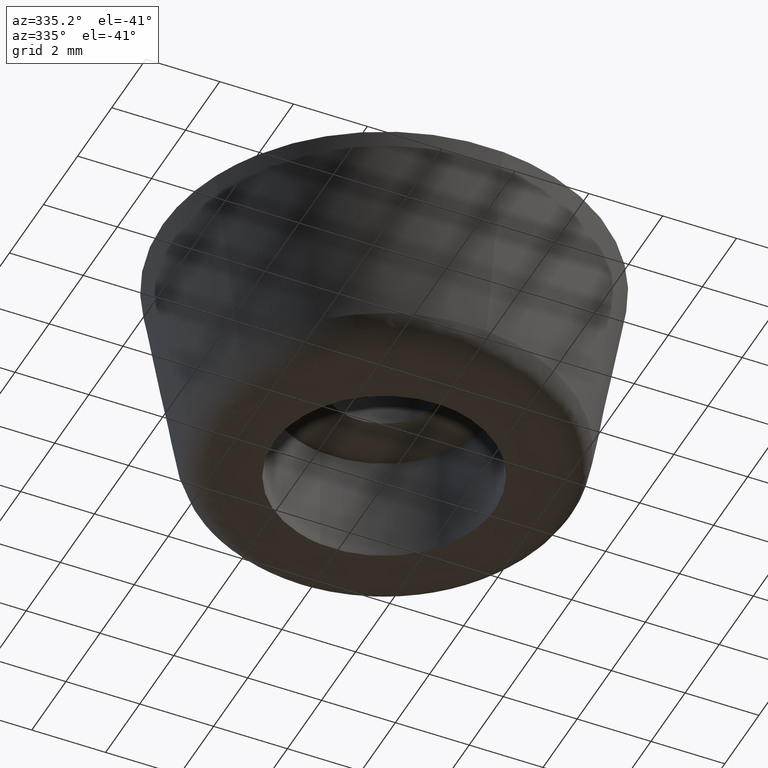
[diagram: clean part render]
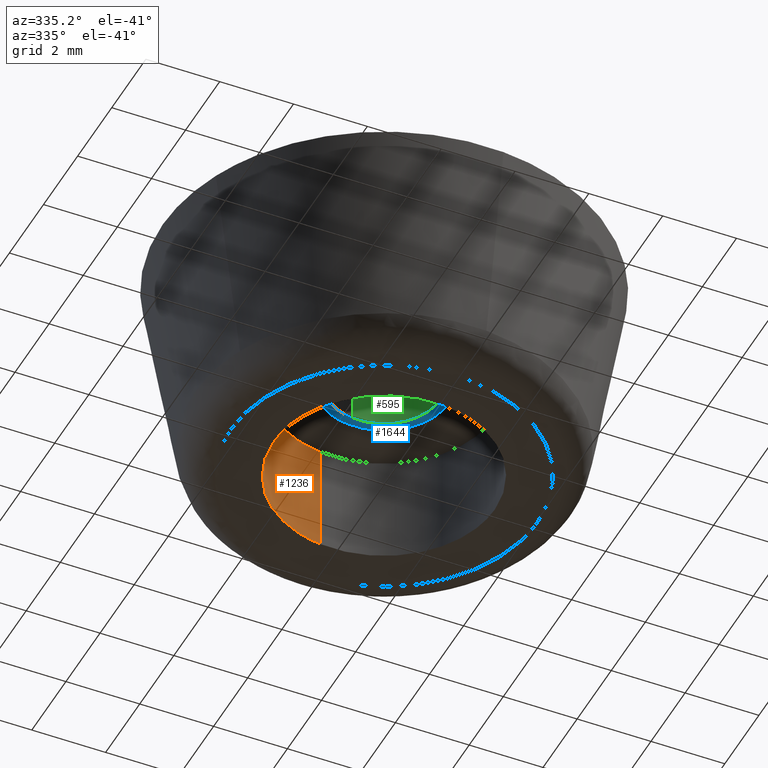
[diagram: same view with three faces highlighted in distinct colors, each labeled with its STEP entity id]
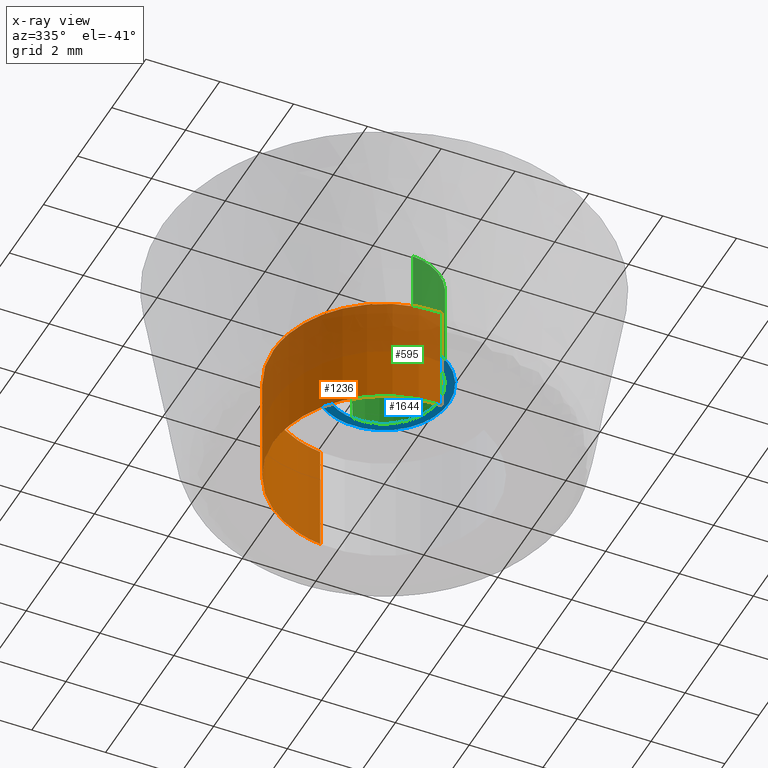
[diagram: x-ray of the same camera — body ghosted, the three highlighted faces saturated]
A machine part, auxiliary view with three faces highlighted in distinct colors.
The next image is the same camera in x-ray (body ghosted, the three faces saturated) — at least one of them is partly hidden behind the body in this view.
Their STEP definitions:

[orange] entity #1236 — the highlighted face is a freeform B-spline surface patch.
#1073=CARTESIAN_POINT('',(-0.354101457130916,2.979028727296228,2.999999999999995));
#1074=VERTEX_POINT('',#1073);
#1092=CARTESIAN_POINT('',(-0.354101472135801,2.979028725512682,-8.518285E-017));
#1093=VERTEX_POINT('',#1092);
#1094=CARTESIAN_POINT('',(-0.354101457130916,2.979028727296228,2.999999999999995));
#1095=CARTESIAN_POINT('',(-0.354101472135801,2.979028725512682,-8.518285E-017));
#1096=QUASI_UNIFORM_CURVE('',1,(#1094,#1095),.UNSPECIFIED.,.F.,.U.);
#1097=EDGE_CURVE('',#1074,#1093,#1096,.T.);
#1116=CARTESIAN_POINT('',(0.183143654877451,-2.994404515371004,-8.326673E-017));
#1117=VERTEX_POINT('',#1116);
#1131=CARTESIAN_POINT('',(0.183143630903085,-2.994404516837307,3.000000000000010));
#1132=VERTEX_POINT('',#1131);
#1133=CARTESIAN_POINT('',(0.183143630903085,-2.994404516837307,3.000000000000010));
#1134=CARTESIAN_POINT('',(0.183143654877451,-2.994404515371004,-8.326673E-017));
#1135=QUASI_UNIFORM_CURVE('',1,(#1133,#1134),.UNSPECIFIED.,.F.,.U.);
#1136=EDGE_CURVE('',#1132,#1117,#1135,.T.);
#1154=CARTESIAN_POINT('',(0.183145618604571,-2.994404395265600,3.075000000000001));
#1155=CARTESIAN_POINT('',(-2.811258776661029,-3.177550013870171,3.075000000000000));
#1156=CARTESIAN_POINT('',(-2.994404395265600,-0.183145618604571,3.075000000000001));
#1157=CARTESIAN_POINT('',(-3.167358590197582,2.644630472518504,3.075000000000001));
#1158=CARTESIAN_POINT('',(-0.354102703970275,2.979028579091000,3.075000000000002));
#1159=CARTESIAN_POINT('',(0.183145618604571,-2.994404395265600,-0.076875000000000));
#1160=CARTESIAN_POINT('',(-2.811258776661029,-3.177550013870171,-0.076875000000000));
#1161=CARTESIAN_POINT('',(-2.994404395265600,-0.183145618604571,-0.076875000000000));
#1162=CARTESIAN_POINT('',(-3.167358590197582,2.644630472518504,-0.076875000000000));
#1163=CARTESIAN_POINT('',(-0.354102703970275,2.979028579091000,-0.076875000000000));
#1171=(BOUNDED_SURFACE()B_SPLINE_SURFACE(2,1,((#1154,#1159),(#1155,#1160),(#1156,#1161),(#1157,#1162),(#1158,#1163)),.UNSPECIFIED.,.F.,.F.,.U.)B_SPLINE_SURFACE_WITH_KNOTS((3,2,3),(2,2),(0.0,4.970562748477139,9.742302987015194),(0.0,3.151875000000002),.UNSPECIFIED.)GEOMETRIC_REPRESENTATION_ITEM()RATIONAL_B_SPLINE_SURFACE(((1.0,1.0),(0.707106781186548,0.707106781186548),(1.0,1.0),(0.718822509939086,0.718822509939086),(0.977505800795127,0.977505800795127)))REPRESENTATION_ITEM('')SURFACE());
#1172=CARTESIAN_POINT('',(-3.0,0.0,3.0));
#1173=VERTEX_POINT('',#1172);
#1174=CARTESIAN_POINT('',(-3.0,0.0,3.0));
#1175=CARTESIAN_POINT('',(-3.000000000000001,2.664524700911740,3.000000000000001));
#1176=CARTESIAN_POINT('',(-0.354101457130916,2.979028727296228,2.999999999999995));
#1184=(BOUNDED_CURVE()B_SPLINE_CURVE(2,(#1174,#1175,#1176),.UNSPECIFIED.,.F.,.U.)B_SPLINE_CURVE_WITH_KNOTS((3,3),(0.0,0.229562544250081),.UNSPECIFIED.)CURVE()GEOMETRIC_REPRESENTATION_ITEM()RATIONAL_B_SPLINE_CURVE((1.0,0.731050749982353,0.956026892830324))REPRESENTATION_ITEM(''));
#1185=EDGE_CURVE('',#1173,#1074,#1184,.T.);
#1186=ORIENTED_EDGE('',*,*,#1185,.F.);
#1187=CARTESIAN_POINT('',(0.183143630903085,-2.994404516837307,3.000000000000010));
#1188=CARTESIAN_POINT('',(0.091657293258414,-3.000000000000000,3.000000000000000));
#1189=CARTESIAN_POINT('',(0.0,-3.0,3.0));
#1190=CARTESIAN_POINT('',(-3.0,-3.0,3.0));
#1191=CARTESIAN_POINT('',(-3.0,0.0,3.0));
#1199=(BOUNDED_CURVE()B_SPLINE_CURVE(2,(#1187,#1188,#1189,#1190,#1191),.UNSPECIFIED.,.F.,.U.)B_SPLINE_CURVE_WITH_KNOTS((3,2,3),(0.739333076779450,0.750000000000000,1.0),.UNSPECIFIED.)CURVE()GEOMETRIC_REPRESENTATION_ITEM()RATIONAL_B_SPLINE_CURVE((0.976072287148952,0.987502922092389,1.0,0.707106781186548,1.0))REPRESENTATION_ITEM(''));
#1200=EDGE_CURVE('',#1132,#1173,#1199,.T.);
#1201=ORIENTED_EDGE('',*,*,#1200,.F.);
#1202=ORIENTED_EDGE('',*,*,#1136,.T.);
#1203=CARTESIAN_POINT('',(-3.0,0.0,0.0));
#1204=VERTEX_POINT('',#1203);
#1205=CARTESIAN_POINT('',(0.183143654877451,-2.994404515371004,-8.326673E-017));
#1206=CARTESIAN_POINT('',(0.091657305279207,-3.000000000000001,0.0));
#1207=CARTESIAN_POINT('',(0.0,-3.0,0.0));
#1208=CARTESIAN_POINT('',(-3.0,-3.0,0.0));
#1209=CARTESIAN_POINT('',(-3.0,0.0,0.0));
#1217=(BOUNDED_CURVE()B_SPLINE_CURVE(2,(#1205,#1206,#1207,#1208,#1209),.UNSPECIFIED.,.F.,.U.)B_SPLINE_CURVE_WITH_KNOTS((3,2,3),(0.739333075397973,0.750000000000000,1.0),.UNSPECIFIED.)CURVE()GEOMETRIC_REPRESENTATION_ITEM()RATIONAL_B_SPLINE_CURVE((0.976072284188181,0.987502920473888,1.0,0.707106781186548,1.0))REPRESENTATION_ITEM(''));
#1218=EDGE_CURVE('',#1117,#1204,#1217,.T.);
#1219=ORIENTED_EDGE('',*,*,#1218,.T.);
#1220=CARTESIAN_POINT('',(-3.0,0.0,0.0));
#1221=CARTESIAN_POINT('',(-3.000000000000000,2.664524687396485,0.0));
#1222=CARTESIAN_POINT('',(-0.354101472135801,2.979028725512683,-8.518285E-017));
#1230=(BOUNDED_CURVE()B_SPLINE_CURVE(2,(#1220,#1221,#1222),.UNSPECIFIED.,.F.,.U.)B_SPLINE_CURVE_WITH_KNOTS((3,3),(0.0,0.229562543398839),.UNSPECIFIED.)CURVE()GEOMETRIC_REPRESENTATION_ITEM()RATIONAL_B_SPLINE_CURVE((1.0,0.731050750979645,0.956026891161853))REPRESENTATION_ITEM(''));
#1231=EDGE_CURVE('',#1204,#1093,#1230,.T.);
#1232=ORIENTED_EDGE('',*,*,#1231,.T.);
#1233=ORIENTED_EDGE('',*,*,#1097,.F.);
#1234=EDGE_LOOP('',(#1186,#1201,#1202,#1219,#1232,#1233));
#1235=FACE_OUTER_BOUND('',#1234,.T.);
#1236=ADVANCED_FACE('',(#1235),#1171,.F.);

[blue] entity #1644 — the highlighted face is a freeform B-spline surface patch.
#534=CARTESIAN_POINT('',(-0.177051351995047,1.489514289544322,3.0));
#535=VERTEX_POINT('',#534);
#541=CARTESIAN_POINT('',(1.500000000000000,0.0,3.0));
#542=VERTEX_POINT('',#541);
#543=CARTESIAN_POINT('',(-0.177051351995047,1.489514289544321,3.000000000000001));
#544=CARTESIAN_POINT('',(-0.088836179487880,1.500000000000000,3.000000000000000));
#545=CARTESIAN_POINT('',(0.0,1.500000000000000,3.0));
#546=CARTESIAN_POINT('',(1.500000000000000,1.500000000000000,3.0));
#547=CARTESIAN_POINT('',(1.500000000000000,0.0,3.0));
#555=(BOUNDED_CURVE()B_SPLINE_CURVE(2,(#543,#544,#545,#546,#547),.UNSPECIFIED.,.F.,.U.)B_SPLINE_CURVE_WITH_KNOTS((3,2,3),(0.229562473513396,0.250000000000000,0.500000000000000),.UNSPECIFIED.)CURVE()GEOMETRIC_REPRESENTATION_ITEM()RATIONAL_B_SPLINE_CURVE((0.956026754183478,0.976055948331013,1.0,0.707106781186548,1.0))REPRESENTATION_ITEM(''));
#556=EDGE_CURVE('',#535,#542,#555,.T.);
#558=CARTESIAN_POINT('',(0.091572809316450,-1.497202197631934,3.0));
#559=VERTEX_POINT('',#558);
#560=CARTESIAN_POINT('',(1.500000000000000,0.0,3.0));
#561=CARTESIAN_POINT('',(1.500000000000000,-1.411059100331790,3.000000000000001));
#562=CARTESIAN_POINT('',(0.091572809316450,-1.497202197631934,3.0));
#570=(BOUNDED_CURVE()B_SPLINE_CURVE(2,(#560,#561,#562),.UNSPECIFIED.,.F.,.U.)B_SPLINE_CURVE_WITH_KNOTS((3,3),(0.500000000000000,0.739332962238703),.UNSPECIFIED.)CURVE()GEOMETRIC_REPRESENTATION_ITEM()RATIONAL_B_SPLINE_CURVE((1.0,0.719603993286991,0.976072041666204))REPRESENTATION_ITEM(''));
#571=EDGE_CURVE('',#542,#559,#570,.T.);
#645=CARTESIAN_POINT('',(-1.500000000000000,0.0,3.0));
#646=VERTEX_POINT('',#645);
#647=CARTESIAN_POINT('',(0.091572809316450,-1.497202197631934,3.000000000000000));
#648=CARTESIAN_POINT('',(0.045829144962088,-1.500000000000000,3.0));
#649=CARTESIAN_POINT('',(0.0,-1.500000000000000,3.0));
#650=CARTESIAN_POINT('',(-1.500000000000000,-1.500000000000000,3.0));
#651=CARTESIAN_POINT('',(-1.500000000000000,0.0,3.0));
#659=(BOUNDED_CURVE()B_SPLINE_CURVE(2,(#647,#648,#649,#650,#651),.UNSPECIFIED.,.F.,.U.)B_SPLINE_CURVE_WITH_KNOTS((3,2,3),(0.739332962238703,0.750000000000000,1.0),.UNSPECIFIED.)CURVE()GEOMETRIC_REPRESENTATION_ITEM()RATIONAL_B_SPLINE_CURVE((0.976072041666204,0.987502787899557,1.0,0.707106781186548,1.0))REPRESENTATION_ITEM(''));
#660=EDGE_CURVE('',#559,#646,#659,.T.);
#662=CARTESIAN_POINT('',(-1.500000000000000,0.0,3.0));
#663=CARTESIAN_POINT('',(-1.500000000000000,1.332261788909200,3.000000000000000));
#664=CARTESIAN_POINT('',(-0.177051351995047,1.489514289544321,3.000000000000001));
#672=(BOUNDED_CURVE()B_SPLINE_CURVE(2,(#662,#663,#664),.UNSPECIFIED.,.F.,.U.)B_SPLINE_CURVE_WITH_KNOTS((3,3),(0.0,0.229562473513396),.UNSPECIFIED.)CURVE()GEOMETRIC_REPRESENTATION_ITEM()RATIONAL_B_SPLINE_CURVE((1.0,0.731050832855535,0.956026754183478))REPRESENTATION_ITEM(''));
#673=EDGE_CURVE('',#646,#535,#672,.T.);
#701=CARTESIAN_POINT('',(-0.206559910658221,1.737766671135359,3.0));
#702=VERTEX_POINT('',#701);
#703=CARTESIAN_POINT('',(1.750000000000000,0.0,3.0));
#704=VERTEX_POINT('',#703);
#705=CARTESIAN_POINT('',(-0.206559910658221,1.737766671135359,3.000000000000001));
#706=CARTESIAN_POINT('',(-0.103642209399830,1.750000000000000,3.000000000000001));
#707=CARTESIAN_POINT('',(0.0,1.750000000000000,3.0));
#708=CARTESIAN_POINT('',(1.750000000000000,1.750000000000000,3.000000000000000));
#709=CARTESIAN_POINT('',(1.750000000000000,0.0,3.0));
#717=(BOUNDED_CURVE()B_SPLINE_CURVE(2,(#705,#706,#707,#708,#709),.UNSPECIFIED.,.F.,.U.)B_SPLINE_CURVE_WITH_KNOTS((3,2,3),(0.229562473513914,0.250000000000000,0.500000000000000),.UNSPECIFIED.)CURVE()GEOMETRIC_REPRESENTATION_ITEM()RATIONAL_B_SPLINE_CURVE((0.956026754184495,0.976055948331621,1.0,0.707106781186547,1.0))REPRESENTATION_ITEM(''));
#718=EDGE_CURVE('',#702,#704,#717,.T.);
#759=CARTESIAN_POINT('',(0.106833913740830,-1.746735960262384,3.000000000000024));
#760=VERTEX_POINT('',#759);
#766=CARTESIAN_POINT('',(1.750000000000000,0.0,3.0));
#767=CARTESIAN_POINT('',(1.749999999999999,-1.646236590057418,2.999999999999999));
#768=CARTESIAN_POINT('',(0.106833913740830,-1.746735960262383,3.000000000000024));
#776=(BOUNDED_CURVE()B_SPLINE_CURVE(2,(#766,#767,#768),.UNSPECIFIED.,.F.,.U.)B_SPLINE_CURVE_WITH_KNOTS((3,3),(0.500000000000000,0.739333064031838),.UNSPECIFIED.)CURVE()GEOMETRIC_REPRESENTATION_ITEM()RATIONAL_B_SPLINE_CURVE((1.0,0.719603874028915,0.976072259828366))REPRESENTATION_ITEM(''));
#777=EDGE_CURVE('',#704,#760,#776,.T.);
#800=CARTESIAN_POINT('',(-1.750000000000000,0.0,3.0));
#801=VERTEX_POINT('',#800);
#802=CARTESIAN_POINT('',(-1.750000000000000,0.0,3.0));
#803=CARTESIAN_POINT('',(-1.750000000000001,1.554305420398873,3.000000000000000));
#804=CARTESIAN_POINT('',(-0.206559910658221,1.737766671135359,3.0));
#812=(BOUNDED_CURVE()B_SPLINE_CURVE(2,(#802,#803,#804),.UNSPECIFIED.,.F.,.U.)B_SPLINE_CURVE_WITH_KNOTS((3,3),(0.0,0.229562473513915),.UNSPECIFIED.)CURVE()GEOMETRIC_REPRESENTATION_ITEM()RATIONAL_B_SPLINE_CURVE((1.0,0.731050832854927,0.956026754184495))REPRESENTATION_ITEM(''));
#813=EDGE_CURVE('',#801,#702,#812,.T.);
#815=CARTESIAN_POINT('',(0.106833913740830,-1.746735960262383,3.000000000000024));
#816=CARTESIAN_POINT('',(0.053466819105335,-1.750000000000000,3.0));
#817=CARTESIAN_POINT('',(0.0,-1.750000000000000,3.0));
#818=CARTESIAN_POINT('',(-1.750000000000000,-1.750000000000000,3.000000000000000));
#819=CARTESIAN_POINT('',(-1.750000000000000,0.0,3.0));
#827=(BOUNDED_CURVE()B_SPLINE_CURVE(2,(#815,#816,#817,#818,#819),.UNSPECIFIED.,.F.,.U.)B_SPLINE_CURVE_WITH_KNOTS((3,2,3),(0.739333064031838,0.750000000000000,1.0),.UNSPECIFIED.)CURVE()GEOMETRIC_REPRESENTATION_ITEM()RATIONAL_B_SPLINE_CURVE((0.976072259828366,0.987502907157632,1.0,0.707106781186547,1.0))REPRESENTATION_ITEM(''));
#828=EDGE_CURVE('',#760,#801,#827,.T.);
#1627=CARTESIAN_POINT('',(-1.924824993216321,-1.924782399771801,3.0));
#1628=CARTESIAN_POINT('',(1.924825087093636,-1.924782399771801,3.0));
#1629=CARTESIAN_POINT('',(-1.924824993216321,1.924793164370647,3.0));
#1630=CARTESIAN_POINT('',(1.924825087093636,1.924793164370647,3.0));
#1631=B_SPLINE_SURFACE_WITH_KNOTS('',1,1,((#1627,#1629),(#1628,#1630)),.UNSPECIFIED.,.F.,.F.,.U.,(2,2),(2,2),(0.0,3.849650080309957),(0.0,3.849575564142448),.UNSPECIFIED.);
#1632=ORIENTED_EDGE('',*,*,#813,.T.);
#1633=ORIENTED_EDGE('',*,*,#718,.T.);
#1634=ORIENTED_EDGE('',*,*,#777,.T.);
#1635=ORIENTED_EDGE('',*,*,#828,.T.);
#1636=EDGE_LOOP('',(#1632,#1633,#1634,#1635));
#1637=FACE_OUTER_BOUND('',#1636,.T.);
#1638=ORIENTED_EDGE('',*,*,#571,.F.);
#1639=ORIENTED_EDGE('',*,*,#556,.F.);
#1640=ORIENTED_EDGE('',*,*,#673,.F.);
#1641=ORIENTED_EDGE('',*,*,#660,.F.);
#1642=EDGE_LOOP('',(#1638,#1639,#1640,#1641));
#1643=FACE_BOUND('',#1642,.T.);
#1644=ADVANCED_FACE('',(#1637,#1643),#1631,.F.);

[green] entity #595 — the highlighted face is a freeform B-spline surface patch.
#493=CARTESIAN_POINT('',(-0.177051351985138,1.489514289545500,6.075000000000003));
#494=CARTESIAN_POINT('',(-0.134422092956966,1.494581423172908,6.075000000000001));
#495=CARTESIAN_POINT('',(-0.091572809302285,1.497202197632800,6.075000000000001));
#496=CARTESIAN_POINT('',(1.405629388330515,1.588775006935085,6.075000000000003));
#497=CARTESIAN_POINT('',(1.497202197632800,0.091572809302285,6.075000000000001));
#498=CARTESIAN_POINT('',(1.588775006935085,-1.405629388330515,6.075000000000003));
#499=CARTESIAN_POINT('',(0.091572809302285,-1.497202197632800,6.075000000000001));
#500=CARTESIAN_POINT('',(-0.177051351985138,1.489514289545500,2.923124999999999));
#501=CARTESIAN_POINT('',(-0.134422092956966,1.494581423172908,2.923124999999999));
#502=CARTESIAN_POINT('',(-0.091572809302285,1.497202197632800,2.923124999999999));
#503=CARTESIAN_POINT('',(1.405629388330515,1.588775006935085,2.923124999999999));
#504=CARTESIAN_POINT('',(1.497202197632800,0.091572809302285,2.923124999999999));
#505=CARTESIAN_POINT('',(1.588775006935085,-1.405629388330515,2.923124999999999));
#506=CARTESIAN_POINT('',(0.091572809302285,-1.497202197632800,2.923124999999999));
#514=(BOUNDED_SURFACE()B_SPLINE_SURFACE(2,1,((#493,#500),(#494,#501),(#495,#502),(#496,#503),(#497,#504),(#498,#505),(#499,#506)),.UNSPECIFIED.,.F.,.F.,.U.)B_SPLINE_SURFACE_WITH_KNOTS((3,2,2,3),(2,2),(3.078760800517997,3.141592653589793,4.712388980384690,6.283185307179586),(0.0,3.151875000000003),.UNSPECIFIED.)GEOMETRIC_REPRESENTATION_ITEM()RATIONAL_B_SPLINE_SURFACE(((0.977505800795127,0.977505800795127),(0.988284271247462,0.988284271247462),(1.0,1.0),(0.707106781186548,0.707106781186548),(1.0,1.0),(0.707106781186548,0.707106781186548),(1.0,1.0)))REPRESENTATION_ITEM('')SURFACE());
#515=CARTESIAN_POINT('',(-0.177051351995047,1.489514289544322,6.0));
#516=VERTEX_POINT('',#515);
#517=CARTESIAN_POINT('',(1.500000000000000,0.0,6.0));
#518=VERTEX_POINT('',#517);
#519=CARTESIAN_POINT('',(-0.177051351995047,1.489514289544321,6.000000000000001));
#520=CARTESIAN_POINT('',(-0.088836179487880,1.500000000000000,6.000000000000001));
#521=CARTESIAN_POINT('',(0.0,1.500000000000000,6.0));
#522=CARTESIAN_POINT('',(1.500000000000000,1.500000000000000,6.0));
#523=CARTESIAN_POINT('',(1.500000000000000,0.0,6.0));
#531=(BOUNDED_CURVE()B_SPLINE_CURVE(2,(#519,#520,#521,#522,#523),.UNSPECIFIED.,.F.,.U.)B_SPLINE_CURVE_WITH_KNOTS((3,2,3),(0.229562473513396,0.250000000000000,0.500000000000000),.UNSPECIFIED.)CURVE()GEOMETRIC_REPRESENTATION_ITEM()RATIONAL_B_SPLINE_CURVE((0.956026754183478,0.976055948331013,1.0,0.707106781186548,1.0))REPRESENTATION_ITEM(''));
#532=EDGE_CURVE('',#516,#518,#531,.T.);
#533=ORIENTED_EDGE('',*,*,#532,.F.);
#534=CARTESIAN_POINT('',(-0.177051351995047,1.489514289544322,3.0));
#535=VERTEX_POINT('',#534);
#536=CARTESIAN_POINT('',(-0.177051351995047,1.489514289544322,6.0));
#537=CARTESIAN_POINT('',(-0.177051351995047,1.489514289544322,3.0));
#538=QUASI_UNIFORM_CURVE('',1,(#536,#537),.UNSPECIFIED.,.F.,.U.);
#539=EDGE_CURVE('',#516,#535,#538,.T.);
#540=ORIENTED_EDGE('',*,*,#539,.T.);
#541=CARTESIAN_POINT('',(1.500000000000000,0.0,3.0));
#542=VERTEX_POINT('',#541);
#543=CARTESIAN_POINT('',(-0.177051351995047,1.489514289544321,3.000000000000001));
#544=CARTESIAN_POINT('',(-0.088836179487880,1.500000000000000,3.000000000000000));
#545=CARTESIAN_POINT('',(0.0,1.500000000000000,3.0));
#546=CARTESIAN_POINT('',(1.500000000000000,1.500000000000000,3.0));
#547=CARTESIAN_POINT('',(1.500000000000000,0.0,3.0));
#555=(BOUNDED_CURVE()B_SPLINE_CURVE(2,(#543,#544,#545,#546,#547),.UNSPECIFIED.,.F.,.U.)B_SPLINE_CURVE_WITH_KNOTS((3,2,3),(0.229562473513396,0.250000000000000,0.500000000000000),.UNSPECIFIED.)CURVE()GEOMETRIC_REPRESENTATION_ITEM()RATIONAL_B_SPLINE_CURVE((0.956026754183478,0.976055948331013,1.0,0.707106781186548,1.0))REPRESENTATION_ITEM(''));
#556=EDGE_CURVE('',#535,#542,#555,.T.);
#557=ORIENTED_EDGE('',*,*,#556,.T.);
#558=CARTESIAN_POINT('',(0.091572809316450,-1.497202197631934,3.0));
#559=VERTEX_POINT('',#558);
#560=CARTESIAN_POINT('',(1.500000000000000,0.0,3.0));
#561=CARTESIAN_POINT('',(1.500000000000000,-1.411059100331790,3.000000000000001));
#562=CARTESIAN_POINT('',(0.091572809316450,-1.497202197631934,3.0));
#570=(BOUNDED_CURVE()B_SPLINE_CURVE(2,(#560,#561,#562),.UNSPECIFIED.,.F.,.U.)B_SPLINE_CURVE_WITH_KNOTS((3,3),(0.500000000000000,0.739332962238703),.UNSPECIFIED.)CURVE()GEOMETRIC_REPRESENTATION_ITEM()RATIONAL_B_SPLINE_CURVE((1.0,0.719603993286991,0.976072041666204))REPRESENTATION_ITEM(''));
#571=EDGE_CURVE('',#542,#559,#570,.T.);
#572=ORIENTED_EDGE('',*,*,#571,.T.);
#573=CARTESIAN_POINT('',(0.091572809316450,-1.497202197631934,6.0));
#574=VERTEX_POINT('',#573);
#575=CARTESIAN_POINT('',(0.091572809316450,-1.497202197631934,6.0));
#576=CARTESIAN_POINT('',(0.091572809316450,-1.497202197631934,3.0));
#577=QUASI_UNIFORM_CURVE('',1,(#575,#576),.UNSPECIFIED.,.F.,.U.);
#578=EDGE_CURVE('',#574,#559,#577,.T.);
#579=ORIENTED_EDGE('',*,*,#578,.F.);
#580=CARTESIAN_POINT('',(1.500000000000000,0.0,6.0));
#581=CARTESIAN_POINT('',(1.500000000000000,-1.411059100331790,6.000000000000002));
#582=CARTESIAN_POINT('',(0.091572809316450,-1.497202197631934,6.0));
#590=(BOUNDED_CURVE()B_SPLINE_CURVE(2,(#580,#581,#582),.UNSPECIFIED.,.F.,.U.)B_SPLINE_CURVE_WITH_KNOTS((3,3),(0.500000000000000,0.739332962238703),.UNSPECIFIED.)CURVE()GEOMETRIC_REPRESENTATION_ITEM()RATIONAL_B_SPLINE_CURVE((1.0,0.719603993286991,0.976072041666204))REPRESENTATION_ITEM(''));
#591=EDGE_CURVE('',#518,#574,#590,.T.);
#592=ORIENTED_EDGE('',*,*,#591,.F.);
#593=EDGE_LOOP('',(#533,#540,#557,#572,#579,#592));
#594=FACE_OUTER_BOUND('',#593,.T.);
#595=ADVANCED_FACE('',(#594),#514,.F.);